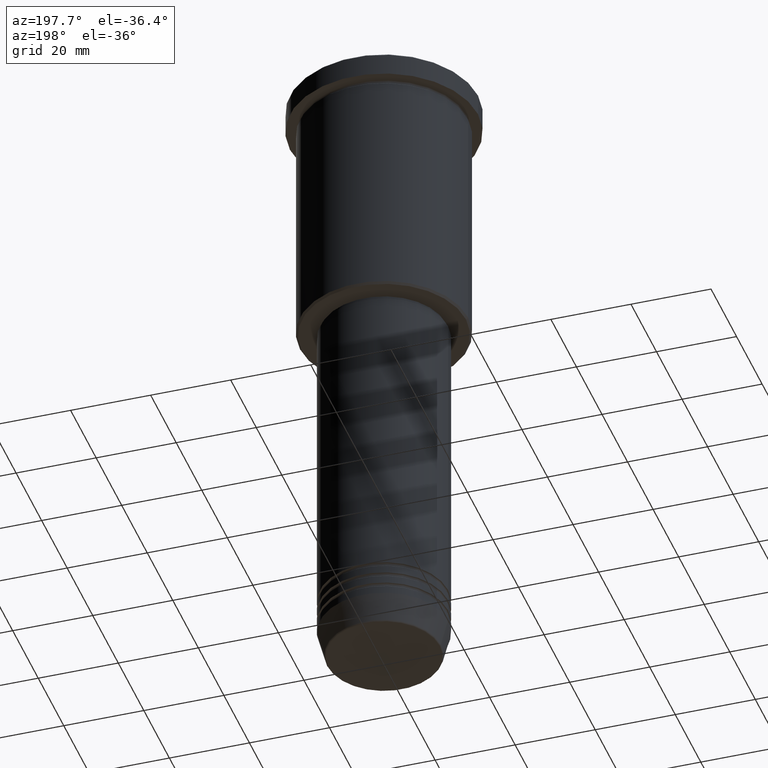
[diagram: clean part render]
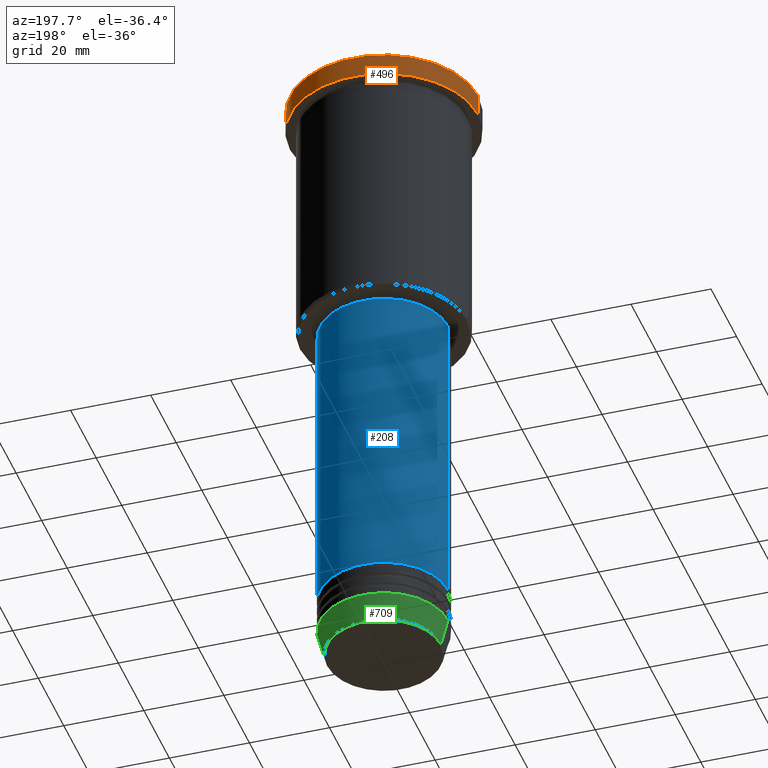
[diagram: same view with three faces highlighted in distinct colors, each labeled with its STEP entity id]
A machine part, auxiliary view with three faces highlighted in distinct colors.
Their STEP definitions:

[orange] entity #496 — the highlighted cylindrical surface (partial cylindrical patch) has radius 23.5 mm, axis along (-0, -0, 1).
#33 = EDGE_LOOP ( 'NONE', ( #885, #567, #209, #337 ) ) ;
#91 = DIRECTION ( 'NONE',  ( -0.000000000000000000, -0.000000000000000000, 1.000000000000000000 ) ) ;
#122 = LINE ( 'NONE', #1041, #1050 ) ;
#130 = CIRCLE ( 'NONE', #744, 23.50000000000000000 ) ;
#139 = DIRECTION ( 'NONE',  ( -0.000000000000000000, -0.000000000000000000, 1.000000000000000000 ) ) ;
#150 = LINE ( 'NONE', #729, #937 ) ;
#170 = CARTESIAN_POINT ( 'NONE',  ( 0.000000000000000000, 0.000000000000000000, -5.999999999999994671 ) ) ;
#202 = EDGE_CURVE ( 'NONE', #991, #943, #130, .T. ) ;
#209 = ORIENTED_EDGE ( 'NONE', *, *, #202, .T. ) ;
#221 = CARTESIAN_POINT ( 'NONE',  ( 0.000000000000000000, 0.000000000000000000, 0.000000000000000000 ) ) ;
#229 = EDGE_CURVE ( 'NONE', #432, #933, #344, .T. ) ;
#282 = EDGE_CURVE ( 'NONE', #432, #943, #122, .T. ) ;
#326 = FACE_OUTER_BOUND ( 'NONE', #33, .T. ) ;
#337 = ORIENTED_EDGE ( 'NONE', *, *, #282, .F. ) ;
#344 = CIRCLE ( 'NONE', #574, 23.50000000000000000 ) ;
#395 = CARTESIAN_POINT ( 'NONE',  ( 23.50000000000000000, 0.000000000000000000, -0.5000000000000143219 ) ) ;
#432 = VERTEX_POINT ( 'NONE', #844 ) ;
#496 = ADVANCED_FACE ( 'NONE', ( #326 ), #594, .T. ) ;
#517 = DIRECTION ( 'NONE',  ( 1.000000000000000000, 0.000000000000000000, 0.000000000000000000 ) ) ;
#567 = ORIENTED_EDGE ( 'NONE', *, *, #814, .T. ) ;
#574 = AXIS2_PLACEMENT_3D ( 'NONE', #170, #805, #783 ) ;
#594 = CYLINDRICAL_SURFACE ( 'NONE', #888, 23.50000000000000000 ) ;
#614 = CARTESIAN_POINT ( 'NONE',  ( 0.000000000000000000, 0.000000000000000000, -0.5000000000000143219 ) ) ;
#716 = DIRECTION ( 'NONE',  ( -0.000000000000000000, -0.000000000000000000, 1.000000000000000000 ) ) ;
#729 = CARTESIAN_POINT ( 'NONE',  ( -23.50000000000000000, 2.877919977996280320E-15, 0.000000000000000000 ) ) ;
#744 = AXIS2_PLACEMENT_3D ( 'NONE', #614, #797, #1094 ) ;
#783 = DIRECTION ( 'NONE',  ( 1.000000000000000000, 0.000000000000000000, 0.000000000000000000 ) ) ;
#797 = DIRECTION ( 'NONE',  ( 0.000000000000000000, 0.000000000000000000, -1.000000000000000000 ) ) ;
#805 = DIRECTION ( 'NONE',  ( -0.000000000000000000, -0.000000000000000000, 1.000000000000000000 ) ) ;
#814 = EDGE_CURVE ( 'NONE', #933, #991, #150, .T. ) ;
#844 = CARTESIAN_POINT ( 'NONE',  ( 23.50000000000000000, 0.000000000000000000, -5.999999999999994671 ) ) ;
#883 = CARTESIAN_POINT ( 'NONE',  ( -23.50000000000000000, 2.877919977996280320E-15, -5.999999999999994671 ) ) ;
#885 = ORIENTED_EDGE ( 'NONE', *, *, #229, .T. ) ;
#888 = AXIS2_PLACEMENT_3D ( 'NONE', #221, #139, #517 ) ;
#933 = VERTEX_POINT ( 'NONE', #883 ) ;
#937 = VECTOR ( 'NONE', #91, 1000.000000000000000 ) ;
#943 = VERTEX_POINT ( 'NONE', #395 ) ;
#991 = VERTEX_POINT ( 'NONE', #1079 ) ;
#1041 = CARTESIAN_POINT ( 'NONE',  ( 23.50000000000000000, 0.000000000000000000, 0.000000000000000000 ) ) ;
#1050 = VECTOR ( 'NONE', #716, 1000.000000000000000 ) ;
#1079 = CARTESIAN_POINT ( 'NONE',  ( -23.50000000000000000, 2.877919977996280320E-15, -0.5000000000000143219 ) ) ;
#1094 = DIRECTION ( 'NONE',  ( 1.000000000000000000, 0.000000000000000000, 0.000000000000000000 ) ) ;

[blue] entity #208 — the highlighted cylindrical surface (partial cylindrical patch) has radius 16 mm, axis along (-0, -0, 1).
#3 = CARTESIAN_POINT ( 'NONE',  ( -16.00000000000000000, 1.959434878635765131E-15, -67.00000000000000000 ) ) ;
#11 = FACE_OUTER_BOUND ( 'NONE', #172, .T. ) ;
#111 = CARTESIAN_POINT ( 'NONE',  ( 0.000000000000000000, 0.000000000000000000, -67.00000000000000000 ) ) ;
#155 = ORIENTED_EDGE ( 'NONE', *, *, #1159, .T. ) ;
#172 = EDGE_LOOP ( 'NONE', ( #868, #155, #510, #398 ) ) ;
#175 = CARTESIAN_POINT ( 'NONE',  ( 0.000000000000000000, 0.000000000000000000, 0.000000000000000000 ) ) ;
#180 = LINE ( 'NONE', #540, #726 ) ;
#183 = EDGE_CURVE ( 'NONE', #1063, #1157, #1175, .T. ) ;
#208 = ADVANCED_FACE ( 'NONE', ( #11 ), #713, .T. ) ;
#218 = AXIS2_PLACEMENT_3D ( 'NONE', #175, #331, #340 ) ;
#236 = CIRCLE ( 'NONE', #1035, 16.00000000000000000 ) ;
#247 = VERTEX_POINT ( 'NONE', #3 ) ;
#328 = AXIS2_PLACEMENT_3D ( 'NONE', #499, #917, #1028 ) ;
#331 = DIRECTION ( 'NONE',  ( -0.000000000000000000, -0.000000000000000000, 1.000000000000000000 ) ) ;
#340 = DIRECTION ( 'NONE',  ( 1.000000000000000000, 0.000000000000000000, 0.000000000000000000 ) ) ;
#385 = EDGE_CURVE ( 'NONE', #1157, #247, #236, .T. ) ;
#398 = ORIENTED_EDGE ( 'NONE', *, *, #183, .F. ) ;
#468 = DIRECTION ( 'NONE',  ( 1.000000000000000000, 0.000000000000000000, 0.000000000000000000 ) ) ;
#499 = CARTESIAN_POINT ( 'NONE',  ( 0.000000000000000000, 0.000000000000000000, -144.9999999999999716 ) ) ;
#510 = ORIENTED_EDGE ( 'NONE', *, *, #385, .F. ) ;
#540 = CARTESIAN_POINT ( 'NONE',  ( -16.00000000000000000, 1.959434878635765131E-15, 0.000000000000000000 ) ) ;
#548 = EDGE_CURVE ( 'NONE', #1063, #1143, #593, .T. ) ;
#593 = CIRCLE ( 'NONE', #328, 16.00000000000000000 ) ;
#628 = DIRECTION ( 'NONE',  ( -0.000000000000000000, -0.000000000000000000, 1.000000000000000000 ) ) ;
#678 = VECTOR ( 'NONE', #628, 1000.000000000000000 ) ;
#713 = CYLINDRICAL_SURFACE ( 'NONE', #218, 16.00000000000000000 ) ;
#726 = VECTOR ( 'NONE', #922, 1000.000000000000000 ) ;
#738 = CARTESIAN_POINT ( 'NONE',  ( 16.00000000000000000, 0.000000000000000000, -67.00000000000000000 ) ) ;
#816 = CARTESIAN_POINT ( 'NONE',  ( 16.00000000000000000, 0.000000000000000000, 0.000000000000000000 ) ) ;
#820 = CARTESIAN_POINT ( 'NONE',  ( -16.00000000000000000, 1.959434878635765131E-15, -144.9999999999999716 ) ) ;
#823 = CARTESIAN_POINT ( 'NONE',  ( 16.00000000000000000, 0.000000000000000000, -144.9999999999999716 ) ) ;
#868 = ORIENTED_EDGE ( 'NONE', *, *, #548, .T. ) ;
#917 = DIRECTION ( 'NONE',  ( -0.000000000000000000, -0.000000000000000000, 1.000000000000000000 ) ) ;
#922 = DIRECTION ( 'NONE',  ( -0.000000000000000000, -0.000000000000000000, 1.000000000000000000 ) ) ;
#954 = DIRECTION ( 'NONE',  ( -0.000000000000000000, -0.000000000000000000, 1.000000000000000000 ) ) ;
#1028 = DIRECTION ( 'NONE',  ( 1.000000000000000000, 0.000000000000000000, 0.000000000000000000 ) ) ;
#1035 = AXIS2_PLACEMENT_3D ( 'NONE', #111, #954, #468 ) ;
#1063 = VERTEX_POINT ( 'NONE', #823 ) ;
#1143 = VERTEX_POINT ( 'NONE', #820 ) ;
#1157 = VERTEX_POINT ( 'NONE', #738 ) ;
#1159 = EDGE_CURVE ( 'NONE', #1143, #247, #180, .T. ) ;
#1175 = LINE ( 'NONE', #816, #678 ) ;

[green] entity #709 — the highlighted conical surface has half-angle 15 deg.
#17 = EDGE_LOOP ( 'NONE', ( #774, #300, #800, #685 ) ) ;
#52 = VERTEX_POINT ( 'NONE', #1151 ) ;
#53 = VECTOR ( 'NONE', #163, 1000.000000000000000 ) ;
#58 = VECTOR ( 'NONE', #528, 1000.000000000000000 ) ;
#72 = CARTESIAN_POINT ( 'NONE',  ( 0.000000000000000000, 0.000000000000000000, -154.0000000000000000 ) ) ;
#76 = AXIS2_PLACEMENT_3D ( 'NONE', #537, #341, #703 ) ;
#78 = LINE ( 'NONE', #988, #53 ) ;
#133 = AXIS2_PLACEMENT_3D ( 'NONE', #959, #878, #779 ) ;
#134 = CIRCLE ( 'NONE', #133, 14.22365507213719660 ) ;
#149 = EDGE_CURVE ( 'NONE', #736, #728, #78, .T. ) ;
#163 = DIRECTION ( 'NONE',  ( 0.2588190451025213501, 0.000000000000000000, 0.9659258262890680902 ) ) ;
#164 = CARTESIAN_POINT ( 'NONE',  ( 14.22365507213719660, 0.000000000000000000, -160.6294095225512422 ) ) ;
#210 = CARTESIAN_POINT ( 'NONE',  ( -16.00000000000000000, 1.959434878635765131E-15, -154.0000000000000000 ) ) ;
#271 = DIRECTION ( 'NONE',  ( 1.000000000000000000, 0.000000000000000000, 0.000000000000000000 ) ) ;
#300 = ORIENTED_EDGE ( 'NONE', *, *, #923, .T. ) ;
#341 = DIRECTION ( 'NONE',  ( -0.000000000000000000, -0.000000000000000000, 1.000000000000000000 ) ) ;
#426 = FACE_OUTER_BOUND ( 'NONE', #17, .T. ) ;
#428 = VERTEX_POINT ( 'NONE', #210 ) ;
#447 = DIRECTION ( 'NONE',  ( -0.000000000000000000, -0.000000000000000000, 1.000000000000000000 ) ) ;
#528 = DIRECTION ( 'NONE',  ( -0.2588190451025213501, 3.169619151431772337E-17, 0.9659258262890680902 ) ) ;
#537 = CARTESIAN_POINT ( 'NONE',  ( 0.000000000000000000, 0.000000000000000000, -154.0000000000000000 ) ) ;
#560 = CONICAL_SURFACE ( 'NONE', #1148, 16.00000000000000000, 0.2617993877991500740 ) ;
#607 = CARTESIAN_POINT ( 'NONE',  ( -16.00000000000000000, 1.959434878635765131E-15, -154.0000000000000000 ) ) ;
#685 = ORIENTED_EDGE ( 'NONE', *, *, #149, .F. ) ;
#703 = DIRECTION ( 'NONE',  ( 1.000000000000000000, 0.000000000000000000, 0.000000000000000000 ) ) ;
#709 = ADVANCED_FACE ( 'NONE', ( #426 ), #560, .T. ) ;
#728 = VERTEX_POINT ( 'NONE', #983 ) ;
#736 = VERTEX_POINT ( 'NONE', #164 ) ;
#753 = EDGE_CURVE ( 'NONE', #728, #428, #1019, .T. ) ;
#774 = ORIENTED_EDGE ( 'NONE', *, *, #905, .T. ) ;
#779 = DIRECTION ( 'NONE',  ( 1.000000000000000000, 0.000000000000000000, 0.000000000000000000 ) ) ;
#800 = ORIENTED_EDGE ( 'NONE', *, *, #753, .F. ) ;
#878 = DIRECTION ( 'NONE',  ( -0.000000000000000000, -0.000000000000000000, 1.000000000000000000 ) ) ;
#905 = EDGE_CURVE ( 'NONE', #736, #52, #134, .T. ) ;
#923 = EDGE_CURVE ( 'NONE', #52, #428, #1172, .T. ) ;
#959 = CARTESIAN_POINT ( 'NONE',  ( 0.000000000000000000, 0.000000000000000000, -160.6294095225512422 ) ) ;
#983 = CARTESIAN_POINT ( 'NONE',  ( 16.00000000000000000, 0.000000000000000000, -154.0000000000000000 ) ) ;
#988 = CARTESIAN_POINT ( 'NONE',  ( 16.00000000000000000, 0.000000000000000000, -154.0000000000000000 ) ) ;
#1019 = CIRCLE ( 'NONE', #76, 16.00000000000000000 ) ;
#1148 = AXIS2_PLACEMENT_3D ( 'NONE', #72, #447, #271 ) ;
#1151 = CARTESIAN_POINT ( 'NONE',  ( -14.22365507213719660, 1.850665122131324126E-15, -160.6294095225512422 ) ) ;
#1172 = LINE ( 'NONE', #607, #58 ) ;